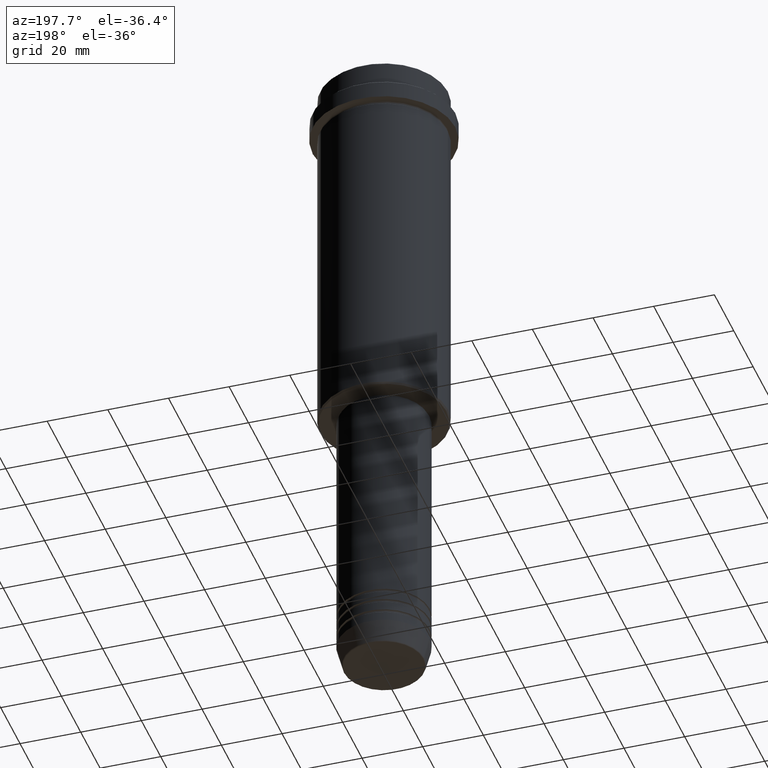
[diagram: clean part render]
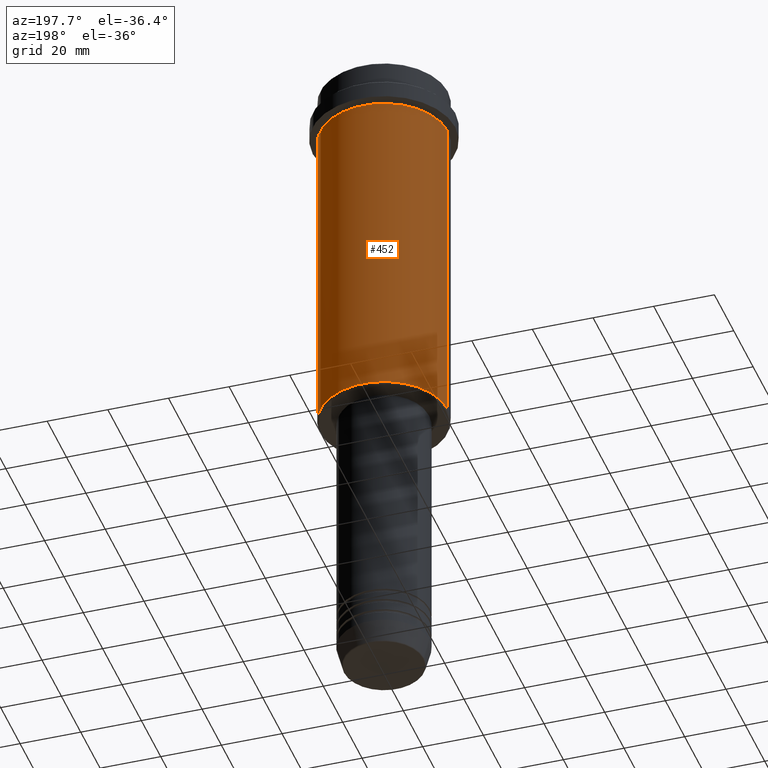
[diagram: same view with one face highlighted and labeled with its STEP entity id]
A machine part, auxiliary view. The second image highlights one B-rep face of the part: STEP entity #452.
In plain terms, the highlighted cylindrical surface (partial cylindrical patch) has radius 21 mm, axis along (-0, -0, 1).
Its self-contained STEP definition (entity closure, byte-faithful):
#20 = EDGE_LOOP ( 'NONE', ( #1181, #1092, #182, #960 ) ) ;
#30 = AXIS2_PLACEMENT_3D ( 'NONE', #638, #850, #207 ) ;
#64 = CARTESIAN_POINT ( 'NONE',  ( 20.99999999999999645, 0.000000000000000000, 0.000000000000000000 ) ) ;
#139 = CARTESIAN_POINT ( 'NONE',  ( 20.99999999999999645, 0.000000000000000000, -124.4999999999999432 ) ) ;
#165 = FACE_OUTER_BOUND ( 'NONE', #20, .T. ) ;
#166 = DIRECTION ( 'NONE',  ( -0.000000000000000000, -0.000000000000000000, 1.000000000000000000 ) ) ;
#182 = ORIENTED_EDGE ( 'NONE', *, *, #953, .F. ) ;
#207 = DIRECTION ( 'NONE',  ( -1.000000000000000000, 0.000000000000000000, 0.000000000000000000 ) ) ;
#208 = EDGE_CURVE ( 'NONE', #1072, #768, #1255, .T. ) ;
#277 = DIRECTION ( 'NONE',  ( -0.000000000000000000, -0.000000000000000000, 1.000000000000000000 ) ) ;
#283 = EDGE_CURVE ( 'NONE', #1343, #642, #599, .T. ) ;
#367 = CARTESIAN_POINT ( 'NONE',  ( -20.99999999999999645, 2.571758278209441267E-15, -124.4999999999999432 ) ) ;
#388 = CARTESIAN_POINT ( 'NONE',  ( 0.000000000000000000, 0.000000000000000000, -16.00000000000000355 ) ) ;
#452 = ADVANCED_FACE ( 'NONE', ( #165 ), #506, .T. ) ;
#490 = DIRECTION ( 'NONE',  ( -0.000000000000000000, -0.000000000000000000, 1.000000000000000000 ) ) ;
#506 = CYLINDRICAL_SURFACE ( 'NONE', #608, 20.99999999999999645 ) ;
#519 = AXIS2_PLACEMENT_3D ( 'NONE', #388, #490, #588 ) ;
#588 = DIRECTION ( 'NONE',  ( 1.000000000000000000, 0.000000000000000000, 0.000000000000000000 ) ) ;
#599 = LINE ( 'NONE', #64, #1267 ) ;
#608 = AXIS2_PLACEMENT_3D ( 'NONE', #704, #277, #1374 ) ;
#638 = CARTESIAN_POINT ( 'NONE',  ( 0.000000000000000000, 0.000000000000000000, -124.4999999999999432 ) ) ;
#642 = VERTEX_POINT ( 'NONE', #978 ) ;
#698 = CIRCLE ( 'NONE', #519, 20.99999999999999645 ) ;
#700 = EDGE_CURVE ( 'NONE', #1343, #1072, #1010, .T. ) ;
#704 = CARTESIAN_POINT ( 'NONE',  ( 0.000000000000000000, 0.000000000000000000, 0.000000000000000000 ) ) ;
#755 = CARTESIAN_POINT ( 'NONE',  ( -20.99999999999999645, 2.571758278209441267E-15, -16.00000000000000355 ) ) ;
#768 = VERTEX_POINT ( 'NONE', #755 ) ;
#850 = DIRECTION ( 'NONE',  ( -0.000000000000000000, -0.000000000000000000, 1.000000000000000000 ) ) ;
#953 = EDGE_CURVE ( 'NONE', #642, #768, #698, .T. ) ;
#960 = ORIENTED_EDGE ( 'NONE', *, *, #283, .F. ) ;
#978 = CARTESIAN_POINT ( 'NONE',  ( 20.99999999999999645, 0.000000000000000000, -16.00000000000000355 ) ) ;
#1010 = CIRCLE ( 'NONE', #30, 20.99999999999999645 ) ;
#1045 = CARTESIAN_POINT ( 'NONE',  ( -20.99999999999999645, 2.571758278209441267E-15, 0.000000000000000000 ) ) ;
#1072 = VERTEX_POINT ( 'NONE', #367 ) ;
#1092 = ORIENTED_EDGE ( 'NONE', *, *, #208, .T. ) ;
#1135 = DIRECTION ( 'NONE',  ( -0.000000000000000000, -0.000000000000000000, 1.000000000000000000 ) ) ;
#1181 = ORIENTED_EDGE ( 'NONE', *, *, #700, .T. ) ;
#1240 = VECTOR ( 'NONE', #166, 1000.000000000000000 ) ;
#1255 = LINE ( 'NONE', #1045, #1240 ) ;
#1267 = VECTOR ( 'NONE', #1135, 1000.000000000000000 ) ;
#1343 = VERTEX_POINT ( 'NONE', #139 ) ;
#1374 = DIRECTION ( 'NONE',  ( 1.000000000000000000, 0.000000000000000000, 0.000000000000000000 ) ) ;